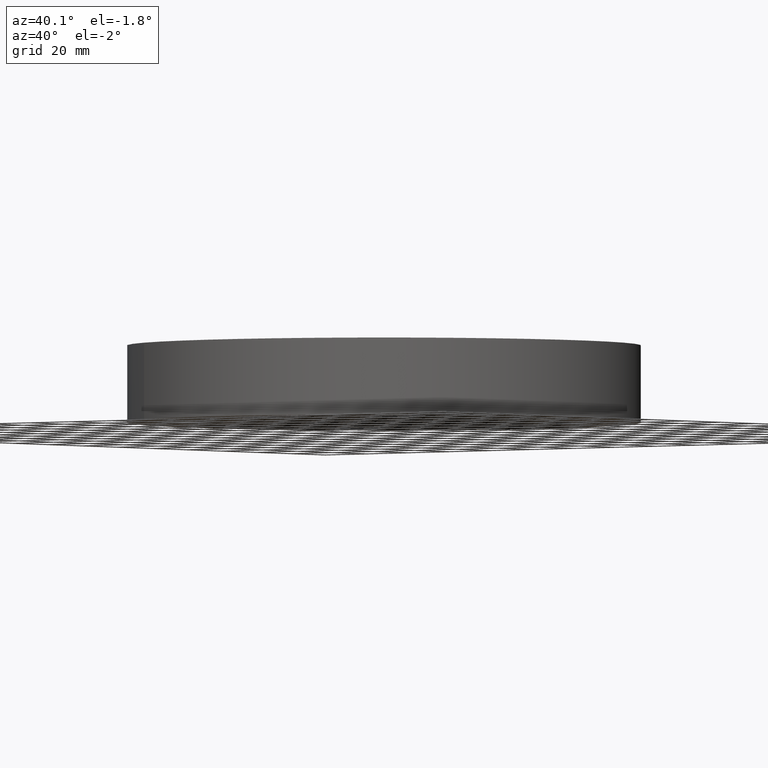
[diagram: clean part render]
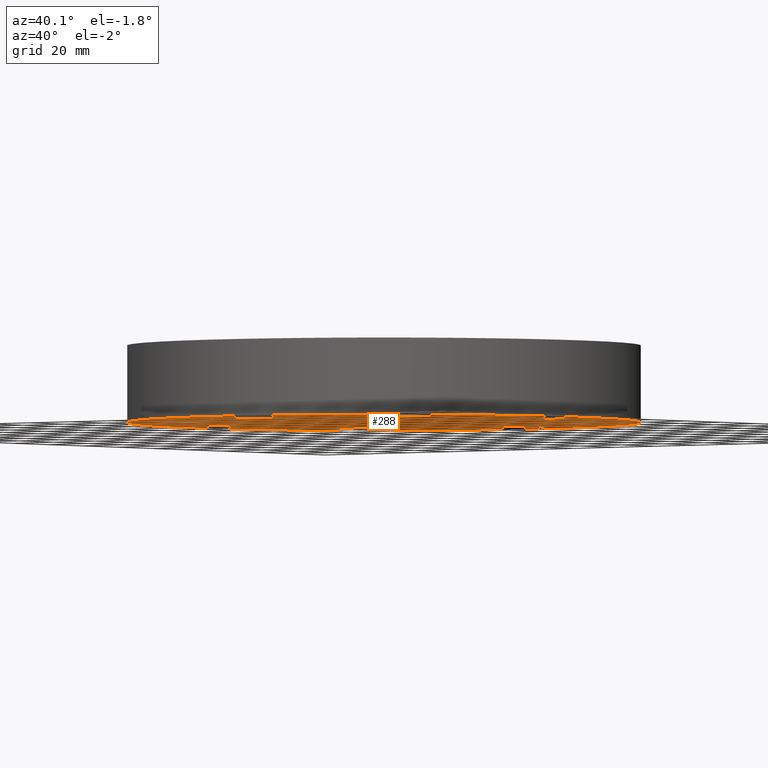
[diagram: same view with one face highlighted and labeled with its STEP entity id]
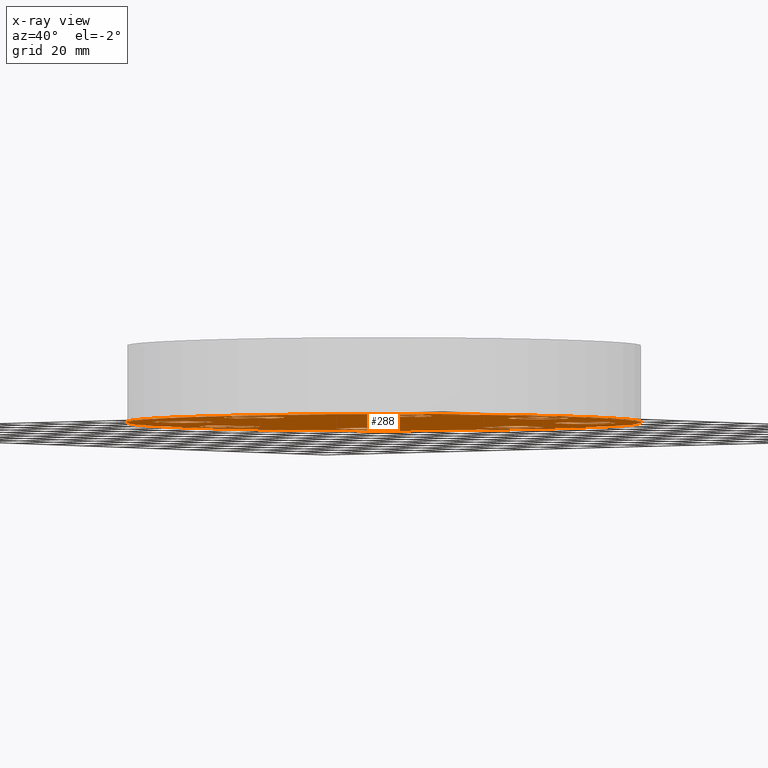
[diagram: x-ray of the same camera — body ghosted, the highlighted face saturated]
A machine part, auxiliary view. The second image highlights one B-rep face of the part: STEP entity #288.
The next image is the same camera in x-ray: the body ghosted, the highlighted face saturated — about 0% of this face is hidden behind the body in this view.
In plain terms, the highlighted planar face has unit normal (0, 0, -1).
Its self-contained STEP definition (entity closure, byte-faithful):
#51=AXIS2_PLACEMENT_3D('Circle Axis2P3D',#49,#50,$) ;
#77=AXIS2_PLACEMENT_3D('Circle Axis2P3D',#75,#76,$) ;
#99=AXIS2_PLACEMENT_3D('Circle Axis2P3D',#97,#98,$) ;
#134=AXIS2_PLACEMENT_3D('Circle Axis2P3D',#132,#133,$) ;
#152=AXIS2_PLACEMENT_3D('Plane Axis2P3D',#149,#150,#151) ;
#164=AXIS2_PLACEMENT_3D('Circle Axis2P3D',#162,#163,$) ;
#173=AXIS2_PLACEMENT_3D('Circle Axis2P3D',#171,#172,$) ;
#182=AXIS2_PLACEMENT_3D('Circle Axis2P3D',#180,#181,$) ;
#191=AXIS2_PLACEMENT_3D('Circle Axis2P3D',#189,#190,$) ;
#200=AXIS2_PLACEMENT_3D('Circle Axis2P3D',#198,#199,$) ;
#209=AXIS2_PLACEMENT_3D('Circle Axis2P3D',#207,#208,$) ;
#218=AXIS2_PLACEMENT_3D('Circle Axis2P3D',#216,#217,$) ;
#227=AXIS2_PLACEMENT_3D('Circle Axis2P3D',#225,#226,$) ;
#236=AXIS2_PLACEMENT_3D('Circle Axis2P3D',#234,#235,$) ;
#245=AXIS2_PLACEMENT_3D('Circle Axis2P3D',#243,#244,$) ;
#254=AXIS2_PLACEMENT_3D('Circle Axis2P3D',#252,#253,$) ;
#263=AXIS2_PLACEMENT_3D('Circle Axis2P3D',#261,#262,$) ;
#272=AXIS2_PLACEMENT_3D('Circle Axis2P3D',#270,#271,$) ;
#281=AXIS2_PLACEMENT_3D('Circle Axis2P3D',#279,#280,$) ;
#44=CARTESIAN_POINT('Vertex',(2.55386367278,0.210947236987,0.)) ;
#49=CARTESIAN_POINT('Axis2P3D Location',(2.94000000001,0.,0.)) ;
#53=CARTESIAN_POINT('Vertex',(3.32613632725,-0.210947236987,0.)) ;
#75=CARTESIAN_POINT('Axis2P3D Location',(2.94000000001,0.,0.)) ;
#97=CARTESIAN_POINT('Axis2P3D Location',(0.,0.,4.19611851827E-016)) ;
#101=CARTESIAN_POINT('Vertex',(1.79784576977,3.2909346071,4.19611851827E-016)) ;
#103=CARTESIAN_POINT('Vertex',(-1.79784576977,-3.2909346071,4.19611851827E-016)) ;
#132=CARTESIAN_POINT('Axis2P3D Location',(0.,0.,4.19611851827E-016)) ;
#149=CARTESIAN_POINT('Axis2P3D Location',(0.,0.,0.)) ;
#162=CARTESIAN_POINT('Axis2P3D Location',(2.0788939367,-2.0788939367,0.)) ;
#166=CARTESIAN_POINT('Vertex',(1.95501654299,-1.6566920995,0.)) ;
#168=CARTESIAN_POINT('Vertex',(2.2027713304,-2.50109577389,0.)) ;
#171=CARTESIAN_POINT('Axis2P3D Location',(2.0788939367,-2.0788939367,0.)) ;
#180=CARTESIAN_POINT('Axis2P3D Location',(-3.1470888887E-016,-2.94000000001,0.)) ;
#184=CARTESIAN_POINT('Vertex',(0.210947236987,-2.55386367278,0.)) ;
#186=CARTESIAN_POINT('Vertex',(-0.210947236987,-3.32613632725,0.)) ;
#189=CARTESIAN_POINT('Axis2P3D Location',(-2.79741234551E-016,-2.94000000001,0.)) ;
#198=CARTESIAN_POINT('Axis2P3D Location',(-2.0788939367,-2.0788939367,0.)) ;
#202=CARTESIAN_POINT('Vertex',(-1.6566920995,-1.95501654299,0.)) ;
#204=CARTESIAN_POINT('Vertex',(-2.50109577389,-2.2027713304,0.)) ;
#207=CARTESIAN_POINT('Axis2P3D Location',(-2.0788939367,-2.0788939367,0.)) ;
#216=CARTESIAN_POINT('Axis2P3D Location',(-2.94000000001,-6.64385432059E-016,0.)) ;
#220=CARTESIAN_POINT('Vertex',(-2.55386367278,-0.210947236987,0.)) ;
#222=CARTESIAN_POINT('Vertex',(-3.32613632725,0.210947236987,0.)) ;
#225=CARTESIAN_POINT('Axis2P3D Location',(-2.94000000001,-2.44773580232E-016,0.)) ;
#234=CARTESIAN_POINT('Axis2P3D Location',(-2.0788939367,2.0788939367,0.)) ;
#238=CARTESIAN_POINT('Vertex',(-1.95501654299,1.6566920995,0.)) ;
#240=CARTESIAN_POINT('Vertex',(-2.2027713304,2.50109577389,0.)) ;
#243=CARTESIAN_POINT('Axis2P3D Location',(-2.0788939367,2.0788939367,0.)) ;
#252=CARTESIAN_POINT('Axis2P3D Location',(-5.59482469102E-016,2.94000000001,0.)) ;
#256=CARTESIAN_POINT('Vertex',(-0.210947236987,2.55386367278,0.)) ;
#258=CARTESIAN_POINT('Vertex',(0.210947236987,3.32613632725,0.)) ;
#261=CARTESIAN_POINT('Axis2P3D Location',(-6.64385432059E-016,2.94000000001,0.)) ;
#270=CARTESIAN_POINT('Axis2P3D Location',(2.0788939367,2.0788939367,0.)) ;
#274=CARTESIAN_POINT('Vertex',(1.6566920995,1.95501654299,0.)) ;
#276=CARTESIAN_POINT('Vertex',(2.50109577389,2.2027713304,0.)) ;
#279=CARTESIAN_POINT('Axis2P3D Location',(2.0788939367,2.0788939367,0.)) ;
#50=DIRECTION('Axis2P3D Direction',(0.,-0.,-0.0393700787402)) ;
#76=DIRECTION('Axis2P3D Direction',(0.,-0.,-0.0393700787402)) ;
#98=DIRECTION('Axis2P3D Direction',(0.,0.,-0.0393700787402)) ;
#133=DIRECTION('Axis2P3D Direction',(0.,0.,-0.0393700787402)) ;
#150=DIRECTION('Axis2P3D Direction',(0.,0.,-0.0393700787402)) ;
#151=DIRECTION('Axis2P3D XDirection',(0.0393700787402,0.,0.)) ;
#163=DIRECTION('Axis2P3D Direction',(0.,0.,-0.0393700787402)) ;
#172=DIRECTION('Axis2P3D Direction',(0.,0.,-0.0393700787402)) ;
#181=DIRECTION('Axis2P3D Direction',(0.,0.,-0.0393700787402)) ;
#190=DIRECTION('Axis2P3D Direction',(0.,0.,-0.0393700787402)) ;
#199=DIRECTION('Axis2P3D Direction',(0.,0.,-0.0393700787402)) ;
#208=DIRECTION('Axis2P3D Direction',(0.,0.,-0.0393700787402)) ;
#217=DIRECTION('Axis2P3D Direction',(0.,0.,-0.0393700787402)) ;
#226=DIRECTION('Axis2P3D Direction',(0.,0.,-0.0393700787402)) ;
#235=DIRECTION('Axis2P3D Direction',(0.,0.,-0.0393700787402)) ;
#244=DIRECTION('Axis2P3D Direction',(0.,0.,-0.0393700787402)) ;
#253=DIRECTION('Axis2P3D Direction',(0.,0.,-0.0393700787402)) ;
#262=DIRECTION('Axis2P3D Direction',(0.,0.,-0.0393700787402)) ;
#271=DIRECTION('Axis2P3D Direction',(0.,0.,-0.0393700787402)) ;
#280=DIRECTION('Axis2P3D Direction',(0.,0.,-0.0393700787402)) ;
#155=ORIENTED_EDGE('',*,*,#105,.T.) ;
#156=ORIENTED_EDGE('',*,*,#136,.T.) ;
#159=ORIENTED_EDGE('',*,*,#79,.F.) ;
#160=ORIENTED_EDGE('',*,*,#55,.F.) ;
#177=ORIENTED_EDGE('',*,*,#170,.F.) ;
#178=ORIENTED_EDGE('',*,*,#175,.F.) ;
#195=ORIENTED_EDGE('',*,*,#188,.F.) ;
#196=ORIENTED_EDGE('',*,*,#193,.F.) ;
#213=ORIENTED_EDGE('',*,*,#206,.F.) ;
#214=ORIENTED_EDGE('',*,*,#211,.F.) ;
#231=ORIENTED_EDGE('',*,*,#224,.F.) ;
#232=ORIENTED_EDGE('',*,*,#229,.F.) ;
#249=ORIENTED_EDGE('',*,*,#242,.F.) ;
#250=ORIENTED_EDGE('',*,*,#247,.F.) ;
#267=ORIENTED_EDGE('',*,*,#260,.F.) ;
#268=ORIENTED_EDGE('',*,*,#265,.F.) ;
#285=ORIENTED_EDGE('',*,*,#278,.F.) ;
#286=ORIENTED_EDGE('',*,*,#283,.F.) ;
#161=FACE_BOUND('',#158,.T.) ;
#179=FACE_BOUND('',#176,.T.) ;
#197=FACE_BOUND('',#194,.T.) ;
#215=FACE_BOUND('',#212,.T.) ;
#233=FACE_BOUND('',#230,.T.) ;
#251=FACE_BOUND('',#248,.T.) ;
#269=FACE_BOUND('',#266,.T.) ;
#287=FACE_BOUND('',#284,.T.) ;
#288=ADVANCED_FACE('PartBody',(#157,#161,#179,#197,#215,#233,#251,#269,#287),#153,.T.) ;
#52=CIRCLE('generated circle',#51,0.440000000002) ;
#78=CIRCLE('generated circle',#77,0.440000000002) ;
#100=CIRCLE('generated circle',#99,3.75000000002) ;
#135=CIRCLE('generated circle',#134,3.75000000002) ;
#165=CIRCLE('generated circle',#164,0.440000000002) ;
#174=CIRCLE('generated circle',#173,0.440000000002) ;
#183=CIRCLE('generated circle',#182,0.440000000002) ;
#192=CIRCLE('generated circle',#191,0.440000000002) ;
#201=CIRCLE('generated circle',#200,0.440000000002) ;
#210=CIRCLE('generated circle',#209,0.440000000002) ;
#219=CIRCLE('generated circle',#218,0.440000000002) ;
#228=CIRCLE('generated circle',#227,0.440000000002) ;
#237=CIRCLE('generated circle',#236,0.440000000002) ;
#246=CIRCLE('generated circle',#245,0.440000000002) ;
#255=CIRCLE('generated circle',#254,0.440000000002) ;
#264=CIRCLE('generated circle',#263,0.440000000002) ;
#273=CIRCLE('generated circle',#272,0.440000000002) ;
#282=CIRCLE('generated circle',#281,0.440000000002) ;
#55=EDGE_CURVE('',#45,#54,#52,.T.) ;
#79=EDGE_CURVE('',#54,#45,#78,.T.) ;
#105=EDGE_CURVE('',#102,#104,#100,.T.) ;
#136=EDGE_CURVE('',#104,#102,#135,.T.) ;
#170=EDGE_CURVE('',#167,#169,#165,.T.) ;
#175=EDGE_CURVE('',#169,#167,#174,.T.) ;
#188=EDGE_CURVE('',#185,#187,#183,.T.) ;
#193=EDGE_CURVE('',#187,#185,#192,.T.) ;
#206=EDGE_CURVE('',#203,#205,#201,.T.) ;
#211=EDGE_CURVE('',#205,#203,#210,.T.) ;
#224=EDGE_CURVE('',#221,#223,#219,.T.) ;
#229=EDGE_CURVE('',#223,#221,#228,.T.) ;
#242=EDGE_CURVE('',#239,#241,#237,.T.) ;
#247=EDGE_CURVE('',#241,#239,#246,.T.) ;
#260=EDGE_CURVE('',#257,#259,#255,.T.) ;
#265=EDGE_CURVE('',#259,#257,#264,.T.) ;
#278=EDGE_CURVE('',#275,#277,#273,.T.) ;
#283=EDGE_CURVE('',#277,#275,#282,.T.) ;
#154=EDGE_LOOP('',(#155,#156)) ;
#158=EDGE_LOOP('',(#159,#160)) ;
#176=EDGE_LOOP('',(#177,#178)) ;
#194=EDGE_LOOP('',(#195,#196)) ;
#212=EDGE_LOOP('',(#213,#214)) ;
#230=EDGE_LOOP('',(#231,#232)) ;
#248=EDGE_LOOP('',(#249,#250)) ;
#266=EDGE_LOOP('',(#267,#268)) ;
#284=EDGE_LOOP('',(#285,#286)) ;
#157=FACE_OUTER_BOUND('',#154,.T.) ;
#153=PLANE('',#152) ;
#45=VERTEX_POINT('',#44) ;
#54=VERTEX_POINT('',#53) ;
#102=VERTEX_POINT('',#101) ;
#104=VERTEX_POINT('',#103) ;
#167=VERTEX_POINT('',#166) ;
#169=VERTEX_POINT('',#168) ;
#185=VERTEX_POINT('',#184) ;
#187=VERTEX_POINT('',#186) ;
#203=VERTEX_POINT('',#202) ;
#205=VERTEX_POINT('',#204) ;
#221=VERTEX_POINT('',#220) ;
#223=VERTEX_POINT('',#222) ;
#239=VERTEX_POINT('',#238) ;
#241=VERTEX_POINT('',#240) ;
#257=VERTEX_POINT('',#256) ;
#259=VERTEX_POINT('',#258) ;
#275=VERTEX_POINT('',#274) ;
#277=VERTEX_POINT('',#276) ;